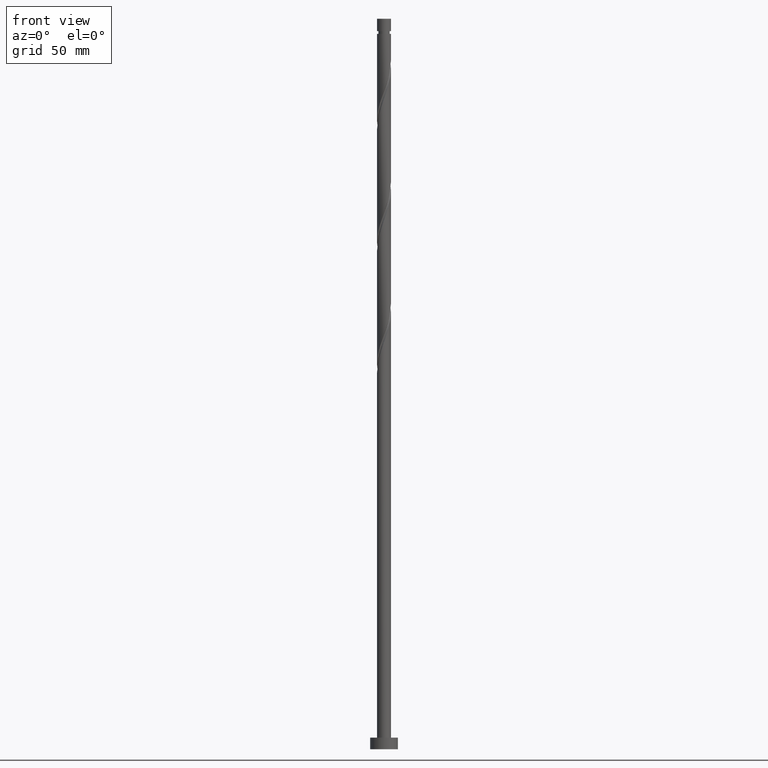
[diagram: clean part render]
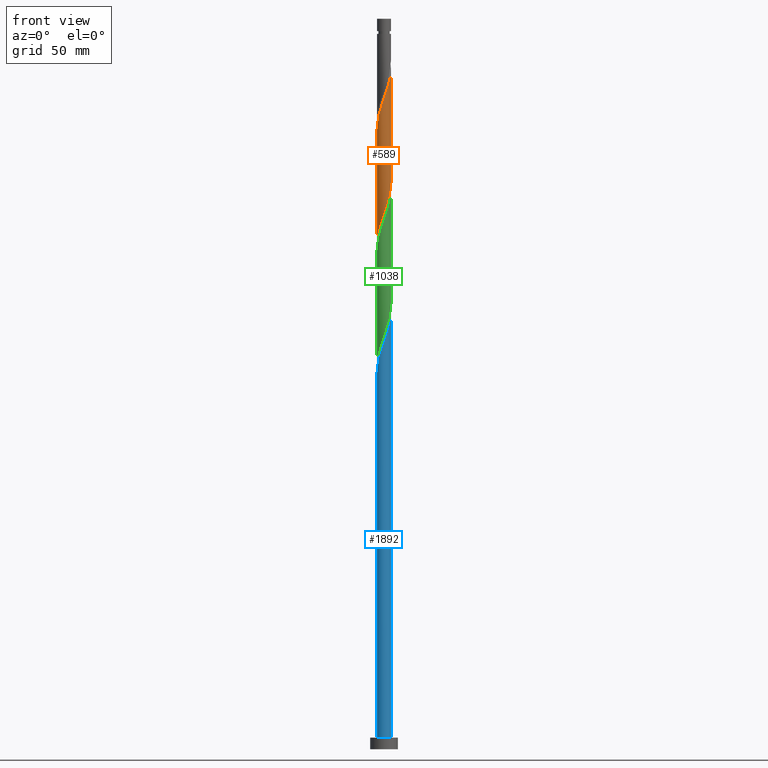
[diagram: same view with three faces highlighted in distinct colors, each labeled with its STEP entity id]
A machine part, front view with three faces highlighted in distinct colors.
Their STEP definitions:

[orange] entity #589 — the highlighted cylindrical surface (edge-blend (fillet) strip) has radius 3 mm, axis along (-0, -0, -1).
#5 = CARTESIAN_POINT ( 'NONE',  ( 1.544221415739434056, -2.594154378914895975, 285.0548766958958709 ) ) ;
#30 = CARTESIAN_POINT ( 'NONE',  ( 0.5969924622639738443, -2.940000000000004832, 282.2423766958957572 ) ) ;
#60 = CARTESIAN_POINT ( 'NONE',  ( -0.2657340189576478662, -3.007264895821487372, 230.6798766958958140 ) ) ;
#71 = CARTESIAN_POINT ( 'NONE',  ( -0.9282509055703007661, -2.872735104178511634, 228.8048766958958140 ) ) ;
#115 = CARTESIAN_POINT ( 'NONE',  ( 3.000000000000000444, 3.673940397442060361E-16, 315.0000000000000000 ) ) ;
#131 = CARTESIAN_POINT ( 'NONE',  ( -2.872735104178516075, -0.9282509055703009881, 270.0548766958957572 ) ) ;
#168 = CARTESIAN_POINT ( 'NONE',  ( -3.000000000000000444, 0.000000000000000000, 315.0000000000000000 ) ) ;
#181 = CARTESIAN_POINT ( 'NONE',  ( 1.667239772048619395, -2.516856822501207347, 236.3048766958957572 ) ) ;
#200 = AXIS2_PLACEMENT_3D ( 'NONE', #1445, #1135, #715 ) ;
#203 = ORIENTED_EDGE ( 'NONE', *, *, #1753, .F. ) ;
#211 = CARTESIAN_POINT ( 'NONE',  ( 2.999999999999999112, -2.138117056958599494E-15, 244.5418937738018315 ) ) ;
#245 = VERTEX_POINT ( 'NONE', #1915 ) ;
#273 = CARTESIAN_POINT ( 'NONE',  ( -0.07218693100826295561, -2.999131382082424135, 280.3673766958958140 ) ) ;
#322 = CARTESIAN_POINT ( 'NONE',  ( 2.389823149881020292, -1.813489815877871392, 239.1173766958958140 ) ) ;
#391 = CARTESIAN_POINT ( 'NONE',  ( 2.299807519258761257, -1.926365846447888552, 287.8673766958957572 ) ) ;
#464 = CARTESIAN_POINT ( 'NONE',  ( -1.366312515670596639, -2.670803270464133128, 276.6173766958957572 ) ) ;
#493 = CARTESIAN_POINT ( 'NONE',  ( 0.7377465701333701942, -2.907873793385202355, 233.4923766958957856 ) ) ;
#511 = CARTESIAN_POINT ( 'NONE',  ( -0.5969924622639740663, -2.939999999999999503, 229.7423766958957856 ) ) ;
#523 = CARTESIAN_POINT ( 'NONE',  ( -1.813489815877871392, -2.389823149881020292, 225.9923766958957856 ) ) ;
#531 = VERTEX_POINT ( 'NONE', #211 ) ;
#535 = CARTESIAN_POINT ( 'NONE',  ( -2.824749718427051803, -1.065385259292569220, 221.3048766958957856 ) ) ;
#544 = CARTESIAN_POINT ( 'NONE',  ( -2.990997868343353350, -0.4101078809741713904, 219.4298766958958424 ) ) ;
#589 = ADVANCED_FACE ( 'NONE', ( #726 ), #1274, .T. ) ;
#621 = VERTEX_POINT ( 'NONE', #1169 ) ;
#642 = CARTESIAN_POINT ( 'NONE',  ( 2.939999999999999503, -0.5969924622639742884, 242.8673766958958993 ) ) ;
#645 = VECTOR ( 'NONE', #1631, 1000.000000000000000 ) ;
#650 = CARTESIAN_POINT ( 'NONE',  ( 1.366312515670593308, -2.670803270464129575, 235.3673766958958140 ) ) ;
#666 = CARTESIAN_POINT ( 'NONE',  ( 2.824749718427056244, -1.065385259292571885, 290.6798766958957003 ) ) ;
#679 = CARTESIAN_POINT ( 'NONE',  ( -1.236236160654866412, -2.733444741546700918, 227.8673766958957856 ) ) ;
#688 = EDGE_CURVE ( 'NONE', #621, #531, #1881, .T. ) ;
#715 = DIRECTION ( 'NONE',  ( -1.000000000000000000, 0.000000000000000000, 0.000000000000000000 ) ) ;
#726 = FACE_OUTER_BOUND ( 'NONE', #1270, .T. ) ;
#729 = CARTESIAN_POINT ( 'NONE',  ( -2.594154378914895975, -1.544221415739434278, 271.9298766958958140 ) ) ;
#821 = CARTESIAN_POINT ( 'NONE',  ( -2.670803270464129575, -1.366312515670593308, 222.2423766958958140 ) ) ;
#853 = CARTESIAN_POINT ( 'NONE',  ( -2.082758216016308950, -2.185491920847150382, 225.0548766958958140 ) ) ;
#892 = CARTESIAN_POINT ( 'NONE',  ( 0.9282509055703008771, -2.872735104178516075, 283.1798766958957003 ) ) ;
#905 = CARTESIAN_POINT ( 'NONE',  ( -1.667239772048622060, -2.516856822501210900, 275.6798766958957572 ) ) ;
#942 = CARTESIAN_POINT ( 'NONE',  ( 2.185491920847150382, -2.082758216016308950, 238.1798766958958140 ) ) ;
#968 = CARTESIAN_POINT ( 'NONE',  ( 2.670803270464133128, -1.366312515670597083, 289.7423766958958140 ) ) ;
#1044 = CARTESIAN_POINT ( 'NONE',  ( -2.185491920847153935, -2.082758216016311170, 273.8048766958958709 ) ) ;
#1066 = CARTESIAN_POINT ( 'NONE',  ( 2.082758216016311170, -2.185491920847153935, 286.9298766958958709 ) ) ;
#1072 = CARTESIAN_POINT ( 'NONE',  ( -0.7377465701333725256, -2.907873793385205907, 278.4923766958956435 ) ) ;
#1081 = CARTESIAN_POINT ( 'NONE',  ( 2.733444741546700918, -1.236236160654866634, 240.9923766958957572 ) ) ;
#1089 = CARTESIAN_POINT ( 'NONE',  ( 0.4101078809741711129, -2.990997868343353350, 232.5548766958958709 ) ) ;
#1107 = CARTESIAN_POINT ( 'NONE',  ( -2.516856822501207347, -1.667239772048619395, 223.1798766958957572 ) ) ;
#1117 = CARTESIAN_POINT ( 'NONE',  ( -2.999131382082419695, -0.07218693100826192866, 218.4923766958957856 ) ) ;
#1122 = VERTEX_POINT ( 'NONE', #1457 ) ;
#1125 = CARTESIAN_POINT ( 'NONE',  ( -2.999999999999999112, 1.735121171877397513E-15, 218.2918937738018030 ) ) ;
#1135 = DIRECTION ( 'NONE',  ( -0.000000000000000000, -0.000000000000000000, -1.000000000000000000 ) ) ;
#1169 = CARTESIAN_POINT ( 'NONE',  ( 3.000000000000004885, 1.194061881722071106E-16, 293.6928596179896545 ) ) ;
#1184 = CARTESIAN_POINT ( 'NONE',  ( 2.907873793385205907, -0.7377465701333725256, 291.6173766958957572 ) ) ;
#1190 = CARTESIAN_POINT ( 'NONE',  ( 1.236236160654867078, -2.733444741546705803, 284.1173766958957003 ) ) ;
#1211 = CARTESIAN_POINT ( 'NONE',  ( -2.389823149881026065, -1.813489815877872502, 272.8673766958957003 ) ) ;
#1212 = CARTESIAN_POINT ( 'NONE',  ( 2.999999999999999112, -0.3015113445777700685, 243.7036226948382591 ) ) ;
#1229 = ORIENTED_EDGE ( 'NONE', *, *, #1394, .F. ) ;
#1231 = CARTESIAN_POINT ( 'NONE',  ( 1.065385259292569220, -2.824749718427051803, 234.4298766958957856 ) ) ;
#1257 = CARTESIAN_POINT ( 'NONE',  ( -2.907873793385202355, -0.7377465701333701942, 220.3673766958957856 ) ) ;
#1270 = EDGE_LOOP ( 'NONE', ( #1504, #1229, #1873, #203 ) ) ;
#1274 = CYLINDRICAL_SURFACE ( 'NONE', #200, 3.000000000000000444 ) ;
#1310 = CARTESIAN_POINT ( 'NONE',  ( -1.065385259292571885, -2.824749718427056244, 277.5548766958958140 ) ) ;
#1331 = CARTESIAN_POINT ( 'NONE',  ( 0.2657340189576470335, -3.007264895821492701, 281.3048766958958140 ) ) ;
#1350 =( BOUNDED_CURVE ( )  B_SPLINE_CURVE ( 2, ( #1768, #1353, #1909, #131, #1463, #729, #1211, #1044, #1919, #905, #464, #1310, #1072, #1479, #273, #1331, #30, #892, #1190, #5, #1795, #1066, #391, #1422, #968, #666, #1184, #1776, #1370, #1926, #1652 ),
 .UNSPECIFIED., .F., .T. ) 
 B_SPLINE_CURVE_WITH_KNOTS ( ( 3, 2, 2, 2, 2, 2, 2, 2, 2, 2, 2, 2, 2, 2, 2, 3 ),
 ( 0.5545303401299220836, 0.5625000000000000000, 0.5714285714285713969, 0.5803571428571427937, 0.5892857142857143016, 0.5982142857142856984, 0.6071428571428572063, 0.6160714285714286031, 0.6250000000000000000, 0.6339285714285713969, 0.6428571428571427937, 0.6517857142857143016, 0.6607142857142856984, 0.6696428571428572063, 0.6785714285714286031, 0.6795303401299216395 ),
 .UNSPECIFIED. ) 
 CURVE ( )  GEOMETRIC_REPRESENTATION_ITEM ( )  RATIONAL_B_SPLINE_CURVE ( ( 0.9079949616362197329, 0.9039886423360827816, 0.9090909090909496948, 0.9033747362666244562, 0.9090909090909496948, 0.9033747362666244562, 0.9090909090909496948, 0.9033747362666244562, 0.9090909090909496948, 0.9033747362666244562, 0.9090909090909496948, 0.9033747362666244562, 0.9090909090909496948, 0.9033747362666244562, 0.9090909090909496948, 0.9033747362666244562, 0.9090909090909496948, 0.9033747362666244562, 0.9090909090909496948, 0.9033747362666244562, 0.9090909090909496948, 0.9033747362666244562, 0.9090909090909496948, 0.9033747362666244562, 0.9090909090909496948, 0.9033747362666244562, 0.9090909090909496948, 0.9033747362666244562, 0.9090909090909496948, 0.9084770030214918135, 0.9079949616362202880 ) ) 
 REPRESENTATION_ITEM ( '' )  );
#1352 = EDGE_CURVE ( 'NONE', #1122, #245, #1647, .T. ) ;
#1353 = CARTESIAN_POINT ( 'NONE',  ( -3.000000000000005329, -0.3015113445777652390, 268.2811306969533689 ) ) ;
#1370 = CARTESIAN_POINT ( 'NONE',  ( 2.999131382082424135, -0.07218693100826316378, 293.4923766958957003 ) ) ;
#1394 = EDGE_CURVE ( 'NONE', #1122, #621, #1350, .T. ) ;
#1422 = CARTESIAN_POINT ( 'NONE',  ( 2.516856822501210900, -1.667239772048622726, 288.8048766958957003 ) ) ;
#1424 = CARTESIAN_POINT ( 'NONE',  ( -2.999999999999999112, -0.03609869149917382947, 218.3922564620269213 ) ) ;
#1445 = CARTESIAN_POINT ( 'NONE',  ( 0.000000000000000000, 0.000000000000000000, 315.0000000000000000 ) ) ;
#1457 = CARTESIAN_POINT ( 'NONE',  ( -3.000000000000005773, 3.690397503197276747E-15, 267.4428596179897113 ) ) ;
#1463 = CARTESIAN_POINT ( 'NONE',  ( -2.733444741546705803, -1.236236160654867300, 270.9923766958957572 ) ) ;
#1479 = CARTESIAN_POINT ( 'NONE',  ( -0.4101078809741731113, -2.990997868343357791, 279.4298766958957572 ) ) ;
#1504 = ORIENTED_EDGE ( 'NONE', *, *, #688, .F. ) ;
#1517 = CARTESIAN_POINT ( 'NONE',  ( 1.926365846447884556, -2.299807519258758592, 237.2423766958958709 ) ) ;
#1540 = VECTOR ( 'NONE', #1762, 1000.000000000000000 ) ;
#1563 = CARTESIAN_POINT ( 'NONE',  ( -1.544221415739432945, -2.594154378914891979, 226.9298766958958140 ) ) ;
#1631 = DIRECTION ( 'NONE',  ( -0.000000000000000000, -0.000000000000000000, -1.000000000000000000 ) ) ;
#1647 = LINE ( 'NONE', #168, #645 ) ;
#1652 = CARTESIAN_POINT ( 'NONE',  ( 3.000000000000004441, 1.194061881722071106E-16, 293.6928596179896545 ) ) ;
#1666 = CARTESIAN_POINT ( 'NONE',  ( 2.594154378914891534, -1.544221415739432945, 240.0548766958958140 ) ) ;
#1672 =( BOUNDED_CURVE ( )  B_SPLINE_CURVE ( 2, ( #1823, #1212, #642, #1814, #1081, #1666, #322, #942, #1517, #181, #650, #1231, #493, #1089, #1855, #60, #511, #71, #679, #1563, #523, #853, #1731, #1107, #821, #535, #1257, #544, #1117, #1424, #1125 ),
 .UNSPECIFIED., .F., .T. ) 
 B_SPLINE_CURVE_WITH_KNOTS ( ( 3, 2, 2, 2, 2, 2, 2, 2, 2, 2, 2, 2, 2, 2, 2, 3 ),
 ( 0.5545303401299221946, 0.5625000000000000000, 0.5714285714285713969, 0.5803571428571429047, 0.5892857142857143016, 0.5982142857142856984, 0.6071428571428570953, 0.6160714285714286031, 0.6250000000000000000, 0.6339285714285713969, 0.6428571428571429047, 0.6517857142857143016, 0.6607142857142856984, 0.6696428571428570953, 0.6785714285714286031, 0.6795303401299219725 ),
 .UNSPECIFIED. ) 
 CURVE ( )  GEOMETRIC_REPRESENTATION_ITEM ( )  RATIONAL_B_SPLINE_CURVE ( ( 0.9079949616362127385, 0.9039886423360758982, 0.9090909090909428114, 0.9033747362666175729, 0.9090909090909428114, 0.9033747362666175729, 0.9090909090909428114, 0.9033747362666175729, 0.9090909090909428114, 0.9033747362666175729, 0.9090909090909428114, 0.9033747362666175729, 0.9090909090909428114, 0.9033747362666175729, 0.9090909090909428114, 0.9033747362666175729, 0.9090909090909428114, 0.9033747362666175729, 0.9090909090909428114, 0.9033747362666175729, 0.9090909090909428114, 0.9033747362666175729, 0.9090909090909428114, 0.9033747362666175729, 0.9090909090909428114, 0.9033747362666175729, 0.9090909090909428114, 0.9033747362666175729, 0.9090909090909428114, 0.9084770030214847081, 0.9079949616362130715 ) ) 
 REPRESENTATION_ITEM ( '' )  );
#1731 = CARTESIAN_POINT ( 'NONE',  ( -2.299807519258758148, -1.926365846447884556, 224.1173766958957856 ) ) ;
#1753 = EDGE_CURVE ( 'NONE', #531, #245, #1672, .T. ) ;
#1762 = DIRECTION ( 'NONE',  ( -0.000000000000000000, -0.000000000000000000, -1.000000000000000000 ) ) ;
#1768 = CARTESIAN_POINT ( 'NONE',  ( -3.000000000000005773, 3.690397503197276747E-15, 267.4428596179897113 ) ) ;
#1776 = CARTESIAN_POINT ( 'NONE',  ( 2.990997868343357347, -0.4101078809741732778, 292.5548766958957572 ) ) ;
#1795 = CARTESIAN_POINT ( 'NONE',  ( 1.813489815877872502, -2.389823149881026065, 285.9923766958957003 ) ) ;
#1814 = CARTESIAN_POINT ( 'NONE',  ( 2.872735104178510745, -0.9282509055703008771, 241.9298766958958424 ) ) ;
#1823 = CARTESIAN_POINT ( 'NONE',  ( 2.999999999999999112, -2.138117056958599494E-15, 244.5418937738018315 ) ) ;
#1855 = CARTESIAN_POINT ( 'NONE',  ( 0.07218693100826173437, -2.999131382082419695, 231.6173766958957856 ) ) ;
#1873 = ORIENTED_EDGE ( 'NONE', *, *, #1352, .T. ) ;
#1881 = LINE ( 'NONE', #115, #1540 ) ;
#1909 = CARTESIAN_POINT ( 'NONE',  ( -2.940000000000004832, -0.5969924622639739553, 269.1173766958957003 ) ) ;
#1915 = CARTESIAN_POINT ( 'NONE',  ( -2.999999999999999112, 1.735121171877397513E-15, 218.2918937738018030 ) ) ;
#1919 = CARTESIAN_POINT ( 'NONE',  ( -1.926365846447888552, -2.299807519258761701, 274.7423766958956435 ) ) ;
#1926 = CARTESIAN_POINT ( 'NONE',  ( 3.000000000000003997, -0.03609869149918758235, 293.5924969297645362 ) ) ;

[blue] entity #1892 — the highlighted cylindrical surface (edge-blend (fillet) strip) has radius 3 mm, axis along (-0, -0, -1).
#108 = EDGE_CURVE ( 'NONE', #310, #701, #138, .T. ) ;
#138 = LINE ( 'NONE', #877, #809 ) ;
#186 = CARTESIAN_POINT ( 'NONE',  ( -2.733444741546705803, -1.236236160654867300, 165.9923766958957572 ) ) ;
#192 = EDGE_CURVE ( 'NONE', #684, #701, #998, .T. ) ;
#202 = CARTESIAN_POINT ( 'NONE',  ( 0.2657340189576470335, -3.007264895821492701, 176.3048766958958424 ) ) ;
#208 = CARTESIAN_POINT ( 'NONE',  ( 0.000000000000000000, 0.000000000000000000, 315.0000000000000000 ) ) ;
#249 = CARTESIAN_POINT ( 'NONE',  ( -3.000000000000000444, 0.000000000000000000, 315.0000000000000000 ) ) ;
#261 =( BOUNDED_CURVE ( )  B_SPLINE_CURVE ( 2, ( #1094, #457, #1676, #330, #186, #618, #1641, #764, #1341, #1220, #1663, #1268, #806, #1129, #377, #202, #992, #1567, #1392, #840, #691, #1870, #508, #516, #548, #1136, #1533, #1843, #1683, #349, #964 ),
 .UNSPECIFIED., .F., .T. ) 
 B_SPLINE_CURVE_WITH_KNOTS ( ( 3, 2, 2, 2, 2, 2, 2, 2, 2, 2, 2, 2, 2, 2, 2, 3 ),
 ( 0.05453034012992218765, 0.06250000000000000000, 0.07142857142857139685, 0.08035714285714290472, 0.08928571428571430157, 0.09821428571428569843, 0.1071428571428570953, 0.1160714285714286031, 0.1250000000000000000, 0.1339285714285713969, 0.1428571428571429047, 0.1517857142857143016, 0.1607142857142856984, 0.1696428571428570953, 0.1785714285714286031, 0.1795303401299221113 ),
 .UNSPECIFIED. ) 
 CURVE ( )  GEOMETRIC_REPRESENTATION_ITEM ( )  RATIONAL_B_SPLINE_CURVE ( ( 0.9079949616362196219, 0.9039886423360827816, 0.9090909090909496948, 0.9033747362666244562, 0.9090909090909496948, 0.9033747362666244562, 0.9090909090909496948, 0.9033747362666244562, 0.9090909090909496948, 0.9033747362666244562, 0.9090909090909496948, 0.9033747362666244562, 0.9090909090909496948, 0.9033747362666244562, 0.9090909090909496948, 0.9033747362666244562, 0.9090909090909496948, 0.9033747362666244562, 0.9090909090909496948, 0.9033747362666244562, 0.9090909090909496948, 0.9033747362666244562, 0.9090909090909496948, 0.9033747362666244562, 0.9090909090909496948, 0.9033747362666244562, 0.9090909090909496948, 0.9033747362666244562, 0.9090909090909496948, 0.9084770030214914804, 0.9079949616362198439 ) ) 
 REPRESENTATION_ITEM ( '' )  );
#310 = VERTEX_POINT ( 'NONE', #1326 ) ;
#330 = CARTESIAN_POINT ( 'NONE',  ( -2.872735104178516075, -0.9282509055703009881, 165.0548766958958140 ) ) ;
#349 = CARTESIAN_POINT ( 'NONE',  ( 3.000000000000004441, -0.03609869149916981879, 188.5924969297646214 ) ) ;
#377 = CARTESIAN_POINT ( 'NONE',  ( -0.07218693100826295561, -2.999131382082424135, 175.3673766958957572 ) ) ;
#457 = CARTESIAN_POINT ( 'NONE',  ( -3.000000000000004885, -0.3015113445777691248, 163.2811306969533689 ) ) ;
#494 = AXIS2_PLACEMENT_3D ( 'NONE', #938, #1925, #1487 ) ;
#508 = CARTESIAN_POINT ( 'NONE',  ( 2.299807519258761257, -1.926365846447888552, 182.8673766958957856 ) ) ;
#516 = CARTESIAN_POINT ( 'NONE',  ( 2.516856822501210900, -1.667239772048622726, 183.8048766958957572 ) ) ;
#548 = CARTESIAN_POINT ( 'NONE',  ( 2.670803270464133128, -1.366312515670597083, 184.7423766958957572 ) ) ;
#571 = CARTESIAN_POINT ( 'NONE',  ( -3.000000000000004885, -9.253979583346051568E-16, 162.4428596179897397 ) ) ;
#618 = CARTESIAN_POINT ( 'NONE',  ( -2.594154378914895975, -1.544221415739434278, 166.9298766958957572 ) ) ;
#684 = VERTEX_POINT ( 'NONE', #1426 ) ;
#691 = CARTESIAN_POINT ( 'NONE',  ( 1.813489815877872502, -2.389823149881026065, 180.9923766958957856 ) ) ;
#701 = VERTEX_POINT ( 'NONE', #1295 ) ;
#764 = CARTESIAN_POINT ( 'NONE',  ( -2.185491920847153935, -2.082758216016311170, 168.8048766958957856 ) ) ;
#802 = EDGE_CURVE ( 'NONE', #1030, #684, #847, .T. ) ;
#806 = CARTESIAN_POINT ( 'NONE',  ( -0.7377465701333725256, -2.907873793385205907, 173.4923766958957572 ) ) ;
#809 = VECTOR ( 'NONE', #1308, 1000.000000000000000 ) ;
#840 = CARTESIAN_POINT ( 'NONE',  ( 1.544221415739434056, -2.594154378914895975, 180.0548766958957572 ) ) ;
#847 = LINE ( 'NONE', #249, #1694 ) ;
#877 = CARTESIAN_POINT ( 'NONE',  ( 3.000000000000000444, 3.673940397442060361E-16, 315.0000000000000000 ) ) ;
#938 = CARTESIAN_POINT ( 'NONE',  ( 0.000000000000000000, 0.000000000000000000, 5.000000000000000000 ) ) ;
#948 = ORIENTED_EDGE ( 'NONE', *, *, #802, .T. ) ;
#964 = CARTESIAN_POINT ( 'NONE',  ( 3.000000000000004885, 5.783737239591282970E-16, 188.6928596179897397 ) ) ;
#992 = CARTESIAN_POINT ( 'NONE',  ( 0.5969924622639738443, -2.940000000000004832, 177.2423766958957003 ) ) ;
#998 = CIRCLE ( 'NONE', #494, 3.000000000000000444 ) ;
#1030 = VERTEX_POINT ( 'NONE', #571 ) ;
#1094 = CARTESIAN_POINT ( 'NONE',  ( -3.000000000000004885, -9.253979583346051568E-16, 162.4428596179897397 ) ) ;
#1129 = CARTESIAN_POINT ( 'NONE',  ( -0.4101078809741731113, -2.990997868343357791, 174.4298766958957572 ) ) ;
#1132 = CYLINDRICAL_SURFACE ( 'NONE', #1704, 3.000000000000000444 ) ;
#1136 = CARTESIAN_POINT ( 'NONE',  ( 2.824749718427056244, -1.065385259292571885, 185.6798766958957572 ) ) ;
#1220 = CARTESIAN_POINT ( 'NONE',  ( -1.667239772048622060, -2.516856822501210900, 170.6798766958957856 ) ) ;
#1237 = ORIENTED_EDGE ( 'NONE', *, *, #108, .F. ) ;
#1254 = ORIENTED_EDGE ( 'NONE', *, *, #192, .T. ) ;
#1268 = CARTESIAN_POINT ( 'NONE',  ( -1.065385259292571885, -2.824749718427056244, 172.5548766958958424 ) ) ;
#1295 = CARTESIAN_POINT ( 'NONE',  ( 3.000000000000000444, 3.673940397442060361E-16, 5.000000000000000000 ) ) ;
#1308 = DIRECTION ( 'NONE',  ( -0.000000000000000000, -0.000000000000000000, -1.000000000000000000 ) ) ;
#1326 = CARTESIAN_POINT ( 'NONE',  ( 3.000000000000004885, 5.783737239591282970E-16, 188.6928596179897397 ) ) ;
#1341 = CARTESIAN_POINT ( 'NONE',  ( -1.926365846447888552, -2.299807519258761701, 169.7423766958957856 ) ) ;
#1392 = CARTESIAN_POINT ( 'NONE',  ( 1.236236160654867078, -2.733444741546705803, 179.1173766958958140 ) ) ;
#1403 = EDGE_LOOP ( 'NONE', ( #1237, #1421, #948, #1254 ) ) ;
#1411 = DIRECTION ( 'NONE',  ( -0.000000000000000000, -0.000000000000000000, -1.000000000000000000 ) ) ;
#1414 = EDGE_CURVE ( 'NONE', #1030, #310, #261, .T. ) ;
#1416 = DIRECTION ( 'NONE',  ( -0.000000000000000000, -0.000000000000000000, -1.000000000000000000 ) ) ;
#1421 = ORIENTED_EDGE ( 'NONE', *, *, #1414, .F. ) ;
#1426 = CARTESIAN_POINT ( 'NONE',  ( -3.000000000000000444, 0.000000000000000000, 5.000000000000000000 ) ) ;
#1487 = DIRECTION ( 'NONE',  ( 1.000000000000000000, 0.000000000000000000, 0.000000000000000000 ) ) ;
#1533 = CARTESIAN_POINT ( 'NONE',  ( 2.907873793385205907, -0.7377465701333725256, 186.6173766958957572 ) ) ;
#1545 = DIRECTION ( 'NONE',  ( -1.000000000000000000, 0.000000000000000000, 0.000000000000000000 ) ) ;
#1567 = CARTESIAN_POINT ( 'NONE',  ( 0.9282509055703008771, -2.872735104178516075, 178.1798766958958140 ) ) ;
#1641 = CARTESIAN_POINT ( 'NONE',  ( -2.389823149881026065, -1.813489815877872502, 167.8673766958957287 ) ) ;
#1663 = CARTESIAN_POINT ( 'NONE',  ( -1.366312515670596639, -2.670803270464133128, 171.6173766958958140 ) ) ;
#1676 = CARTESIAN_POINT ( 'NONE',  ( -2.940000000000004832, -0.5969924622639739553, 164.1173766958957572 ) ) ;
#1683 = CARTESIAN_POINT ( 'NONE',  ( 2.999131382082424135, -0.07218693100826316378, 188.4923766958957572 ) ) ;
#1688 = FACE_OUTER_BOUND ( 'NONE', #1403, .T. ) ;
#1694 = VECTOR ( 'NONE', #1416, 1000.000000000000000 ) ;
#1704 = AXIS2_PLACEMENT_3D ( 'NONE', #208, #1411, #1545 ) ;
#1843 = CARTESIAN_POINT ( 'NONE',  ( 2.990997868343357347, -0.4101078809741732778, 187.5548766958957572 ) ) ;
#1870 = CARTESIAN_POINT ( 'NONE',  ( 2.082758216016311170, -2.185491920847153935, 181.9298766958958424 ) ) ;
#1892 = ADVANCED_FACE ( 'NONE', ( #1688 ), #1132, .T. ) ;
#1925 = DIRECTION ( 'NONE',  ( 0.000000000000000000, 0.000000000000000000, 1.000000000000000000 ) ) ;

[green] entity #1038 — the highlighted cylindrical surface (edge-blend (fillet) strip) has radius 3 mm, axis along (-0, -0, -1).
#1 = AXIS2_PLACEMENT_3D ( 'NONE', #1429, #252, #692 ) ;
#12 = CARTESIAN_POINT ( 'NONE',  ( -0.2657340189576478662, -3.007264895821487372, 178.1798766958958140 ) ) ;
#34 = CARTESIAN_POINT ( 'NONE',  ( 2.185491920847150382, -2.082758216016308950, 185.6798766958958140 ) ) ;
#81 = CARTESIAN_POINT ( 'NONE',  ( 2.670803270464133128, -1.366312515670597083, 237.2423766958957572 ) ) ;
#83 = LINE ( 'NONE', #1304, #1797 ) ;
#121 = CARTESIAN_POINT ( 'NONE',  ( 1.236236160654867078, -2.733444741546705803, 231.6173766958957572 ) ) ;
#160 = CARTESIAN_POINT ( 'NONE',  ( 3.000000000000004441, -0.03609869149917294823, 241.0924969297645930 ) ) ;
#164 = CARTESIAN_POINT ( 'NONE',  ( -2.999131382082419695, -0.07218693100826192866, 165.9923766958958140 ) ) ;
#178 = CARTESIAN_POINT ( 'NONE',  ( -2.999999999999999112, 1.735121171877397513E-15, 165.7918937738018315 ) ) ;
#209 = CARTESIAN_POINT ( 'NONE',  ( -3.000000000000006217, -0.3015113445777590218, 215.7811306969533405 ) ) ;
#219 = EDGE_CURVE ( 'NONE', #253, #400, #773, .T. ) ;
#229 = CARTESIAN_POINT ( 'NONE',  ( -0.4101078809741731113, -2.990997868343357791, 226.9298766958958140 ) ) ;
#252 = DIRECTION ( 'NONE',  ( -0.000000000000000000, -0.000000000000000000, -1.000000000000000000 ) ) ;
#253 = VERTEX_POINT ( 'NONE', #786 ) ;
#308 = CARTESIAN_POINT ( 'NONE',  ( -0.9282509055703007661, -2.872735104178511634, 176.3048766958958709 ) ) ;
#312 = CARTESIAN_POINT ( 'NONE',  ( 2.907873793385205907, -0.7377465701333725256, 239.1173766958957856 ) ) ;
#366 = CARTESIAN_POINT ( 'NONE',  ( -3.000000000000004885, -9.253979583346051568E-16, 214.9428596179897397 ) ) ;
#400 = VERTEX_POINT ( 'NONE', #1247 ) ;
#405 = CARTESIAN_POINT ( 'NONE',  ( 2.516856822501210900, -1.667239772048622726, 236.3048766958957572 ) ) ;
#409 = CARTESIAN_POINT ( 'NONE',  ( -3.000000000000004885, -9.253979583346051568E-16, 214.9428596179897397 ) ) ;
#456 = CARTESIAN_POINT ( 'NONE',  ( -1.236236160654866412, -2.733444741546700918, 175.3673766958957856 ) ) ;
#470 = CARTESIAN_POINT ( 'NONE',  ( -2.299807519258758148, -1.926365846447884556, 171.6173766958958140 ) ) ;
#481 = CARTESIAN_POINT ( 'NONE',  ( -2.824749718427051803, -1.065385259292569220, 168.8048766958958140 ) ) ;
#487 = CARTESIAN_POINT ( 'NONE',  ( 2.389823149881020292, -1.813489815877871392, 186.6173766958958140 ) ) ;
#504 = CARTESIAN_POINT ( 'NONE',  ( -2.389823149881026065, -1.813489815877872502, 220.3673766958957003 ) ) ;
#560 = ORIENTED_EDGE ( 'NONE', *, *, #1171, .T. ) ;
#587 = CARTESIAN_POINT ( 'NONE',  ( -0.07218693100826295561, -2.999131382082424135, 227.8673766958957572 ) ) ;
#591 = FACE_OUTER_BOUND ( 'NONE', #632, .T. ) ;
#592 = VERTEX_POINT ( 'NONE', #409 ) ;
#600 = CARTESIAN_POINT ( 'NONE',  ( 2.939999999999999503, -0.5969924622639742884, 190.3673766958957856 ) ) ;
#617 = CARTESIAN_POINT ( 'NONE',  ( 1.926365846447884556, -2.299807519258758592, 184.7423766958958140 ) ) ;
#629 = DIRECTION ( 'NONE',  ( -0.000000000000000000, -0.000000000000000000, -1.000000000000000000 ) ) ;
#630 = CARTESIAN_POINT ( 'NONE',  ( 0.7377465701333701942, -2.907873793385202355, 180.9923766958957572 ) ) ;
#632 = EDGE_LOOP ( 'NONE', ( #1261, #1087, #560, #751 ) ) ;
#692 = DIRECTION ( 'NONE',  ( -1.000000000000000000, 0.000000000000000000, 0.000000000000000000 ) ) ;
#711 = CARTESIAN_POINT ( 'NONE',  ( -1.065385259292571885, -2.824749718427056244, 225.0548766958958424 ) ) ;
#723 = CARTESIAN_POINT ( 'NONE',  ( 1.544221415739434056, -2.594154378914895975, 232.5548766958957856 ) ) ;
#745 = EDGE_CURVE ( 'NONE', #1862, #253, #83, .T. ) ;
#748 = CARTESIAN_POINT ( 'NONE',  ( 0.4101078809741711129, -2.990997868343353350, 180.0548766958958424 ) ) ;
#751 = ORIENTED_EDGE ( 'NONE', *, *, #219, .F. ) ;
#763 = CARTESIAN_POINT ( 'NONE',  ( 2.999999999999999112, -2.138117056958599494E-15, 192.0418937738018030 ) ) ;
#769 = CARTESIAN_POINT ( 'NONE',  ( 2.990997868343357347, -0.4101078809741732778, 240.0548766958958140 ) ) ;
#773 =( BOUNDED_CURVE ( )  B_SPLINE_CURVE ( 2, ( #763, #1340, #600, #1513, #1788, #1183, #487, #34, #617, #1503, #1197, #897, #630, #748, #1051, #12, #1205, #308, #456, #1800, #1061, #1219, #470, #1070, #1651, #481, #1640, #798, #164, #1085, #178 ),
 .UNSPECIFIED., .F., .T. ) 
 B_SPLINE_CURVE_WITH_KNOTS ( ( 3, 2, 2, 2, 2, 2, 2, 2, 2, 2, 2, 2, 2, 2, 2, 3 ),
 ( 0.8045303401299221946, 0.8125000000000000000, 0.8214285714285713969, 0.8303571428571429047, 0.8392857142857143016, 0.8482142857142856984, 0.8571428571428570953, 0.8660714285714286031, 0.8750000000000000000, 0.8839285714285713969, 0.8928571428571429047, 0.9017857142857143016, 0.9107142857142856984, 0.9196428571428570953, 0.9285714285714286031, 0.9295303401299223056 ),
 .UNSPECIFIED. ) 
 CURVE ( )  GEOMETRIC_REPRESENTATION_ITEM ( )  RATIONAL_B_SPLINE_CURVE ( ( 0.9079949616362127385, 0.9039886423360758982, 0.9090909090909428114, 0.9033747362666175729, 0.9090909090909428114, 0.9033747362666175729, 0.9090909090909428114, 0.9033747362666175729, 0.9090909090909428114, 0.9033747362666175729, 0.9090909090909428114, 0.9033747362666175729, 0.9090909090909428114, 0.9033747362666175729, 0.9090909090909428114, 0.9033747362666175729, 0.9090909090909428114, 0.9033747362666175729, 0.9090909090909428114, 0.9033747362666175729, 0.9090909090909428114, 0.9033747362666175729, 0.9090909090909428114, 0.9033747362666175729, 0.9090909090909428114, 0.9033747362666175729, 0.9090909090909428114, 0.9033747362666175729, 0.9090909090909428114, 0.9084770030214843750, 0.9079949616362125164 ) ) 
 REPRESENTATION_ITEM ( '' )  );
#786 = CARTESIAN_POINT ( 'NONE',  ( 2.999999999999999112, -2.138117056958599494E-15, 192.0418937738018030 ) ) ;
#798 = CARTESIAN_POINT ( 'NONE',  ( -2.990997868343353350, -0.4101078809741713904, 166.9298766958958424 ) ) ;
#830 = CARTESIAN_POINT ( 'NONE',  ( -2.872735104178516075, -0.9282509055703009881, 217.5548766958957287 ) ) ;
#854 = CARTESIAN_POINT ( 'NONE',  ( 2.082758216016311170, -2.185491920847153935, 234.4298766958957287 ) ) ;
#888 = CARTESIAN_POINT ( 'NONE',  ( -3.000000000000000444, 0.000000000000000000, 315.0000000000000000 ) ) ;
#897 = CARTESIAN_POINT ( 'NONE',  ( 1.065385259292569220, -2.824749718427051803, 181.9298766958958424 ) ) ;
#965 =( BOUNDED_CURVE ( )  B_SPLINE_CURVE ( 2, ( #366, #209, #1118, #830, #1846, #1701, #504, #981, #1554, #1398, #1856, #711, #1293, #229, #587, #1581, #1443, #1264, #121, #723, #1301, #854, #1903, #405, #81, #1056, #312, #769, #1506, #160, #1760 ),
 .UNSPECIFIED., .F., .T. ) 
 B_SPLINE_CURVE_WITH_KNOTS ( ( 3, 2, 2, 2, 2, 2, 2, 2, 2, 2, 2, 2, 2, 2, 2, 3 ),
 ( 0.3045303401299219170, 0.3125000000000000000, 0.3214285714285713969, 0.3303571428571429047, 0.3392857142857143016, 0.3482142857142856984, 0.3571428571428570953, 0.3660714285714286031, 0.3750000000000000000, 0.3839285714285713969, 0.3928571428571429047, 0.4017857142857143016, 0.4107142857142856984, 0.4196428571428570953, 0.4285714285714286031, 0.4295303401299220281 ),
 .UNSPECIFIED. ) 
 CURVE ( )  GEOMETRIC_REPRESENTATION_ITEM ( )  RATIONAL_B_SPLINE_CURVE ( ( 0.9079949616362199549, 0.9039886423360826706, 0.9090909090909496948, 0.9033747362666244562, 0.9090909090909496948, 0.9033747362666244562, 0.9090909090909496948, 0.9033747362666244562, 0.9090909090909496948, 0.9033747362666244562, 0.9090909090909496948, 0.9033747362666244562, 0.9090909090909496948, 0.9033747362666244562, 0.9090909090909496948, 0.9033747362666244562, 0.9090909090909496948, 0.9033747362666244562, 0.9090909090909496948, 0.9033747362666244562, 0.9090909090909496948, 0.9033747362666244562, 0.9090909090909496948, 0.9033747362666244562, 0.9090909090909496948, 0.9033747362666244562, 0.9090909090909496948, 0.9033747362666244562, 0.9090909090909496948, 0.9084770030214914804, 0.9079949616362198439 ) ) 
 REPRESENTATION_ITEM ( '' )  );
#981 = CARTESIAN_POINT ( 'NONE',  ( -2.185491920847153935, -2.082758216016311170, 221.3048766958957856 ) ) ;
#1038 = ADVANCED_FACE ( 'NONE', ( #591 ), #1883, .T. ) ;
#1043 = VECTOR ( 'NONE', #629, 1000.000000000000000 ) ;
#1051 = CARTESIAN_POINT ( 'NONE',  ( 0.07218693100826173437, -2.999131382082419695, 179.1173766958958140 ) ) ;
#1056 = CARTESIAN_POINT ( 'NONE',  ( 2.824749718427056244, -1.065385259292571885, 238.1798766958957856 ) ) ;
#1061 = CARTESIAN_POINT ( 'NONE',  ( -1.813489815877871392, -2.389823149881020292, 173.4923766958958140 ) ) ;
#1070 = CARTESIAN_POINT ( 'NONE',  ( -2.516856822501207347, -1.667239772048619395, 170.6798766958957856 ) ) ;
#1085 = CARTESIAN_POINT ( 'NONE',  ( -2.999999999999999556, -0.03609869149916129782, 165.8922564620268645 ) ) ;
#1087 = ORIENTED_EDGE ( 'NONE', *, *, #1313, .F. ) ;
#1118 = CARTESIAN_POINT ( 'NONE',  ( -2.940000000000004832, -0.5969924622639739553, 216.6173766958957856 ) ) ;
#1171 = EDGE_CURVE ( 'NONE', #592, #400, #1182, .T. ) ;
#1182 = LINE ( 'NONE', #888, #1043 ) ;
#1183 = CARTESIAN_POINT ( 'NONE',  ( 2.594154378914891534, -1.544221415739432945, 187.5548766958958140 ) ) ;
#1197 = CARTESIAN_POINT ( 'NONE',  ( 1.366312515670593308, -2.670803270464129575, 182.8673766958958424 ) ) ;
#1205 = CARTESIAN_POINT ( 'NONE',  ( -0.5969924622639740663, -2.939999999999999503, 177.2423766958958140 ) ) ;
#1219 = CARTESIAN_POINT ( 'NONE',  ( -2.082758216016308950, -2.185491920847150382, 172.5548766958958140 ) ) ;
#1247 = CARTESIAN_POINT ( 'NONE',  ( -2.999999999999999112, 1.735121171877397513E-15, 165.7918937738018030 ) ) ;
#1261 = ORIENTED_EDGE ( 'NONE', *, *, #745, .F. ) ;
#1264 = CARTESIAN_POINT ( 'NONE',  ( 0.9282509055703008771, -2.872735104178516075, 230.6798766958958140 ) ) ;
#1287 = DIRECTION ( 'NONE',  ( -0.000000000000000000, -0.000000000000000000, -1.000000000000000000 ) ) ;
#1293 = CARTESIAN_POINT ( 'NONE',  ( -0.7377465701333725256, -2.907873793385205907, 225.9923766958957856 ) ) ;
#1301 = CARTESIAN_POINT ( 'NONE',  ( 1.813489815877872502, -2.389823149881026065, 233.4923766958957572 ) ) ;
#1304 = CARTESIAN_POINT ( 'NONE',  ( 3.000000000000000444, 3.673940397442060361E-16, 315.0000000000000000 ) ) ;
#1313 = EDGE_CURVE ( 'NONE', #592, #1862, #965, .T. ) ;
#1340 = CARTESIAN_POINT ( 'NONE',  ( 2.999999999999999112, -0.3015113445777700685, 191.2036226948382307 ) ) ;
#1398 = CARTESIAN_POINT ( 'NONE',  ( -1.667239772048622060, -2.516856822501210900, 223.1798766958957572 ) ) ;
#1429 = CARTESIAN_POINT ( 'NONE',  ( 0.000000000000000000, 0.000000000000000000, 315.0000000000000000 ) ) ;
#1443 = CARTESIAN_POINT ( 'NONE',  ( 0.5969924622639738443, -2.940000000000004832, 229.7423766958957287 ) ) ;
#1503 = CARTESIAN_POINT ( 'NONE',  ( 1.667239772048619395, -2.516856822501207347, 183.8048766958957856 ) ) ;
#1506 = CARTESIAN_POINT ( 'NONE',  ( 2.999131382082424135, -0.07218693100826316378, 240.9923766958956719 ) ) ;
#1513 = CARTESIAN_POINT ( 'NONE',  ( 2.872735104178510745, -0.9282509055703008771, 189.4298766958958140 ) ) ;
#1554 = CARTESIAN_POINT ( 'NONE',  ( -1.926365846447888552, -2.299807519258761701, 222.2423766958957572 ) ) ;
#1581 = CARTESIAN_POINT ( 'NONE',  ( 0.2657340189576470335, -3.007264895821492701, 228.8048766958957572 ) ) ;
#1640 = CARTESIAN_POINT ( 'NONE',  ( -2.907873793385202355, -0.7377465701333701942, 167.8673766958957856 ) ) ;
#1651 = CARTESIAN_POINT ( 'NONE',  ( -2.670803270464129575, -1.366312515670593308, 169.7423766958958424 ) ) ;
#1701 = CARTESIAN_POINT ( 'NONE',  ( -2.594154378914895975, -1.544221415739434278, 219.4298766958958424 ) ) ;
#1760 = CARTESIAN_POINT ( 'NONE',  ( 3.000000000000004885, 5.783737239591282970E-16, 241.1928596179897113 ) ) ;
#1788 = CARTESIAN_POINT ( 'NONE',  ( 2.733444741546700918, -1.236236160654866634, 188.4923766958958424 ) ) ;
#1797 = VECTOR ( 'NONE', #1287, 1000.000000000000000 ) ;
#1800 = CARTESIAN_POINT ( 'NONE',  ( -1.544221415739432945, -2.594154378914891979, 174.4298766958957572 ) ) ;
#1845 = CARTESIAN_POINT ( 'NONE',  ( 3.000000000000004885, 5.783737239591282970E-16, 241.1928596179897113 ) ) ;
#1846 = CARTESIAN_POINT ( 'NONE',  ( -2.733444741546705803, -1.236236160654867300, 218.4923766958957287 ) ) ;
#1856 = CARTESIAN_POINT ( 'NONE',  ( -1.366312515670596639, -2.670803270464133128, 224.1173766958957856 ) ) ;
#1862 = VERTEX_POINT ( 'NONE', #1845 ) ;
#1883 = CYLINDRICAL_SURFACE ( 'NONE', #1, 3.000000000000000444 ) ;
#1903 = CARTESIAN_POINT ( 'NONE',  ( 2.299807519258761257, -1.926365846447888552, 235.3673766958957287 ) ) ;